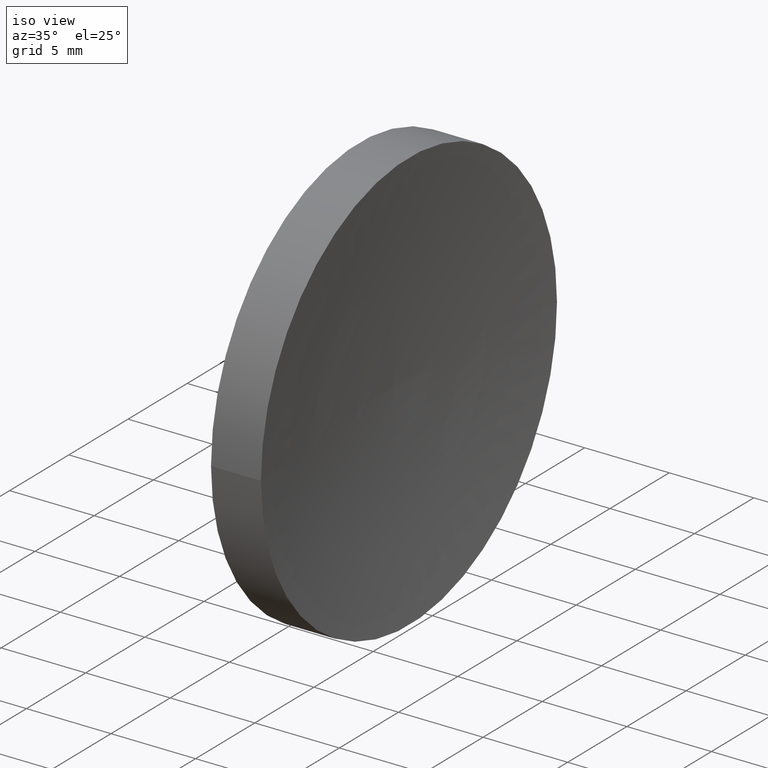
[diagram: clean part render]
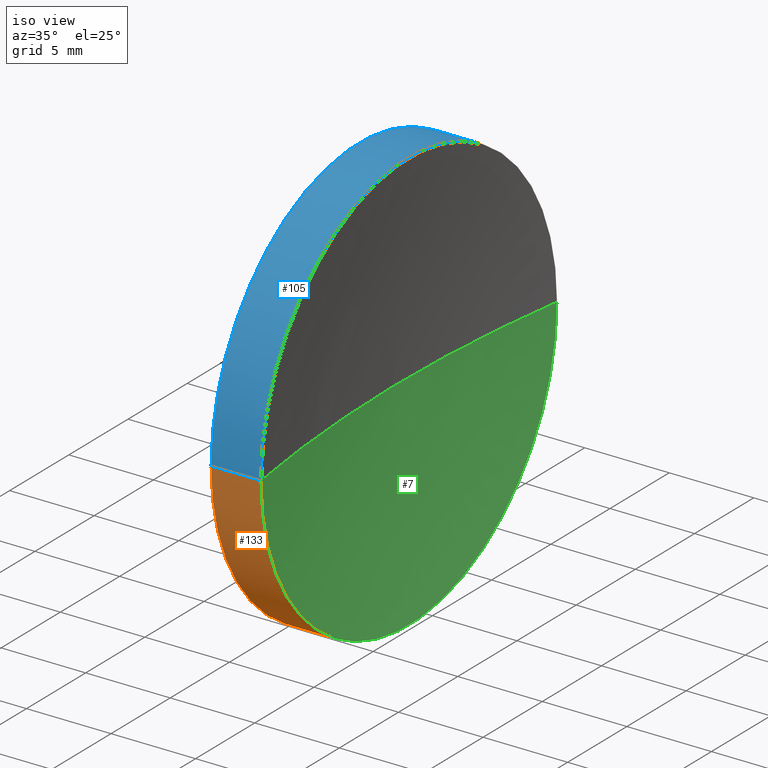
[diagram: same view with three faces highlighted in distinct colors, each labeled with its STEP entity id]
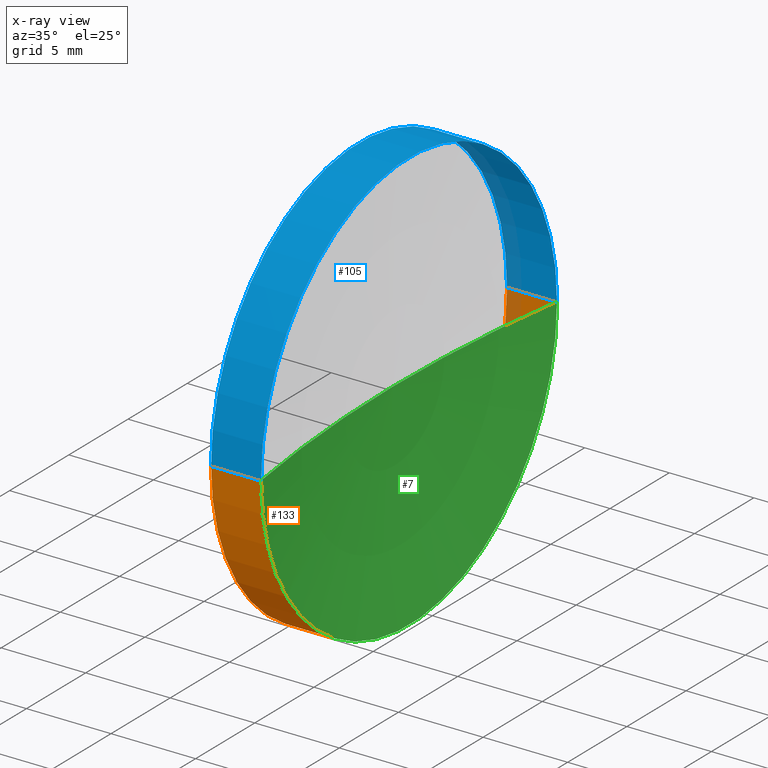
[diagram: x-ray of the same camera — body ghosted, the three highlighted faces saturated]
A machine part, iso view with three faces highlighted in distinct colors.
The next image is the same camera in x-ray (body ghosted, the three faces saturated) — at least one of them is partly hidden behind the body in this view.
Their STEP definitions:

[orange] entity #133 — the highlighted cylindrical surface (partial cylindrical patch) has radius 12.5 mm, axis along (-1, 0, -0).
#3 = EDGE_CURVE ( 'NONE', #114, #83, #98, .T. ) ;
#4 = CARTESIAN_POINT ( 'NONE',  ( 60.31197721033621700, 45.07872591329306300, 1.530808498934187800E-015 ) ) ;
#8 = LINE ( 'NONE', #129, #125 ) ;
#11 = EDGE_CURVE ( 'NONE', #114, #60, #52, .T. ) ;
#18 = CARTESIAN_POINT ( 'NONE',  ( 57.35819015802111000, 32.57872591329309800, 0.0000000000000000000 ) ) ;
#19 = ORIENTED_EDGE ( 'NONE', *, *, #3, .F. ) ;
#23 = AXIS2_PLACEMENT_3D ( 'NONE', #82, #68, #95 ) ;
#33 = CYLINDRICAL_SURFACE ( 'NONE', #23, 12.50000000000000000 ) ;
#34 = FACE_OUTER_BOUND ( 'NONE', #135, .T. ) ;
#44 = ORIENTED_EDGE ( 'NONE', *, *, #73, .F. ) ;
#50 = ORIENTED_EDGE ( 'NONE', *, *, #94, .T. ) ;
#52 = CIRCLE ( 'NONE', #113, 12.50000000000000000 ) ;
#55 = DIRECTION ( 'NONE',  ( -1.000000000000000000, 7.636108817321419600E-016, -0.0000000000000000000 ) ) ;
#58 = VERTEX_POINT ( 'NONE', #145 ) ;
#60 = VERTEX_POINT ( 'NONE', #140 ) ;
#62 = DIRECTION ( 'NONE',  ( -1.000000000000000000, 7.636108817321419600E-016, -0.0000000000000000000 ) ) ;
#64 = CARTESIAN_POINT ( 'NONE',  ( 55.00739462442118800, 45.07872591329309100, 1.530808498934191500E-015 ) ) ;
#65 = DIRECTION ( 'NONE',  ( -5.551115123125782700E-016, -1.000000000000000000, 0.0000000000000000000 ) ) ;
#68 = DIRECTION ( 'NONE',  ( -1.000000000000000000, 7.636108817321419600E-016, -0.0000000000000000000 ) ) ;
#73 = EDGE_CURVE ( 'NONE', #83, #58, #110, .T. ) ;
#82 = CARTESIAN_POINT ( 'NONE',  ( 55.00739462442118100, 32.57872591329309800, 0.0000000000000000000 ) ) ;
#83 = VERTEX_POINT ( 'NONE', #128 ) ;
#85 = DIRECTION ( 'NONE',  ( -1.000000000000000000, 7.636108817321419600E-016, -0.0000000000000000000 ) ) ;
#87 = VECTOR ( 'NONE', #55, 1000.000000000000000 ) ;
#89 = CARTESIAN_POINT ( 'NONE',  ( 60.31197721033621700, 32.57872591329309100, 0.0000000000000000000 ) ) ;
#94 = EDGE_CURVE ( 'NONE', #60, #58, #8, .T. ) ;
#95 = DIRECTION ( 'NONE',  ( -5.551115123125782700E-016, -1.000000000000000000, 0.0000000000000000000 ) ) ;
#98 = LINE ( 'NONE', #64, #87 ) ;
#110 = CIRCLE ( 'NONE', #111, 12.49999999999999600 ) ;
#111 = AXIS2_PLACEMENT_3D ( 'NONE', #18, #85, #158 ) ;
#113 = AXIS2_PLACEMENT_3D ( 'NONE', #89, #62, #65 ) ;
#114 = VERTEX_POINT ( 'NONE', #4 ) ;
#125 = VECTOR ( 'NONE', #159, 1000.000000000000000 ) ;
#128 = CARTESIAN_POINT ( 'NONE',  ( 57.35819015802111700, 45.07872591329309100, 1.530808498934191900E-015 ) ) ;
#129 = CARTESIAN_POINT ( 'NONE',  ( 55.00739462442117400, 20.07872591329309500, 0.0000000000000000000 ) ) ;
#133 = ADVANCED_FACE ( 'NONE', ( #34 ), #33, .T. ) ;
#135 = EDGE_LOOP ( 'NONE', ( #19, #146, #50, #44 ) ) ;
#140 = CARTESIAN_POINT ( 'NONE',  ( 60.31197721033620200, 20.07872591329312000, 0.0000000000000000000 ) ) ;
#145 = CARTESIAN_POINT ( 'NONE',  ( 57.35819015802110200, 20.07872591329309800, 0.0000000000000000000 ) ) ;
#146 = ORIENTED_EDGE ( 'NONE', *, *, #11, .T. ) ;
#158 = DIRECTION ( 'NONE',  ( -5.551115123125784700E-016, -1.000000000000000000, 0.0000000000000000000 ) ) ;
#159 = DIRECTION ( 'NONE',  ( -1.000000000000000000, 7.636108817321419600E-016, -0.0000000000000000000 ) ) ;

[blue] entity #105 — the highlighted cylindrical surface (partial cylindrical patch) has radius 12.5 mm, axis along (-1, 0, -0).
#1 = CARTESIAN_POINT ( 'NONE',  ( 57.35819015802111000, 32.57872591329309800, 0.0000000000000000000 ) ) ;
#3 = EDGE_CURVE ( 'NONE', #114, #83, #98, .T. ) ;
#4 = CARTESIAN_POINT ( 'NONE',  ( 60.31197721033621700, 45.07872591329306300, 1.530808498934187800E-015 ) ) ;
#6 = DIRECTION ( 'NONE',  ( -5.551115123125784700E-016, -1.000000000000000000, 0.0000000000000000000 ) ) ;
#8 = LINE ( 'NONE', #129, #125 ) ;
#25 = CYLINDRICAL_SURFACE ( 'NONE', #151, 12.50000000000000000 ) ;
#27 = FACE_OUTER_BOUND ( 'NONE', #48, .T. ) ;
#30 = DIRECTION ( 'NONE',  ( -1.000000000000000000, 7.636108817321419600E-016, -0.0000000000000000000 ) ) ;
#40 = DIRECTION ( 'NONE',  ( -1.000000000000000000, 7.636108817321419600E-016, -0.0000000000000000000 ) ) ;
#48 = EDGE_LOOP ( 'NONE', ( #107, #122, #152, #76 ) ) ;
#55 = DIRECTION ( 'NONE',  ( -1.000000000000000000, 7.636108817321419600E-016, -0.0000000000000000000 ) ) ;
#58 = VERTEX_POINT ( 'NONE', #145 ) ;
#59 = DIRECTION ( 'NONE',  ( -5.551115123125782700E-016, -1.000000000000000000, 0.0000000000000000000 ) ) ;
#60 = VERTEX_POINT ( 'NONE', #140 ) ;
#64 = CARTESIAN_POINT ( 'NONE',  ( 55.00739462442118800, 45.07872591329309100, 1.530808498934191500E-015 ) ) ;
#66 = DIRECTION ( 'NONE',  ( -1.000000000000000000, 7.636108817321419600E-016, -0.0000000000000000000 ) ) ;
#76 = ORIENTED_EDGE ( 'NONE', *, *, #94, .F. ) ;
#83 = VERTEX_POINT ( 'NONE', #128 ) ;
#84 = CARTESIAN_POINT ( 'NONE',  ( 60.31197721033621700, 32.57872591329309100, 0.0000000000000000000 ) ) ;
#87 = VECTOR ( 'NONE', #55, 1000.000000000000000 ) ;
#94 = EDGE_CURVE ( 'NONE', #60, #58, #8, .T. ) ;
#98 = LINE ( 'NONE', #64, #87 ) ;
#105 = ADVANCED_FACE ( 'NONE', ( #27 ), #25, .T. ) ;
#107 = ORIENTED_EDGE ( 'NONE', *, *, #144, .T. ) ;
#114 = VERTEX_POINT ( 'NONE', #4 ) ;
#122 = ORIENTED_EDGE ( 'NONE', *, *, #3, .T. ) ;
#123 = AXIS2_PLACEMENT_3D ( 'NONE', #84, #66, #160 ) ;
#125 = VECTOR ( 'NONE', #159, 1000.000000000000000 ) ;
#128 = CARTESIAN_POINT ( 'NONE',  ( 57.35819015802111700, 45.07872591329309100, 1.530808498934191900E-015 ) ) ;
#129 = CARTESIAN_POINT ( 'NONE',  ( 55.00739462442117400, 20.07872591329309500, 0.0000000000000000000 ) ) ;
#134 = CARTESIAN_POINT ( 'NONE',  ( 55.00739462442118100, 32.57872591329309800, 0.0000000000000000000 ) ) ;
#140 = CARTESIAN_POINT ( 'NONE',  ( 60.31197721033620200, 20.07872591329312000, 0.0000000000000000000 ) ) ;
#144 = EDGE_CURVE ( 'NONE', #60, #114, #157, .T. ) ;
#145 = CARTESIAN_POINT ( 'NONE',  ( 57.35819015802110200, 20.07872591329309800, 0.0000000000000000000 ) ) ;
#151 = AXIS2_PLACEMENT_3D ( 'NONE', #134, #30, #59 ) ;
#152 = ORIENTED_EDGE ( 'NONE', *, *, #155, .F. ) ;
#155 = EDGE_CURVE ( 'NONE', #58, #83, #161, .T. ) ;
#157 = CIRCLE ( 'NONE', #123, 12.50000000000000000 ) ;
#159 = DIRECTION ( 'NONE',  ( -1.000000000000000000, 7.636108817321419600E-016, -0.0000000000000000000 ) ) ;
#160 = DIRECTION ( 'NONE',  ( -5.551115123125782700E-016, -1.000000000000000000, 0.0000000000000000000 ) ) ;
#161 = CIRCLE ( 'NONE', #162, 12.49999999999999600 ) ;
#162 = AXIS2_PLACEMENT_3D ( 'NONE', #1, #40, #6 ) ;

[green] entity #7 — the highlighted toroidal blend (fillet) surface has major radius 0.0178 mm and minor (blend) radius 82.62 mm.
#2 = CARTESIAN_POINT ( 'NONE',  ( 141.9781882486672100, 32.56096354764692800, -2.175262423378643000E-018 ) ) ;
#4 = CARTESIAN_POINT ( 'NONE',  ( 60.31197721033621700, 45.07872591329306300, 1.530808498934187800E-015 ) ) ;
#5 = ORIENTED_EDGE ( 'NONE', *, *, #11, .F. ) ;
#7 = ADVANCED_FACE ( 'NONE', ( #38 ), #150, .F. ) ;
#11 = EDGE_CURVE ( 'NONE', #114, #60, #52, .T. ) ;
#14 = CARTESIAN_POINT ( 'NONE',  ( 141.9781882486672100, 32.57872591329302700, 0.0000000000000000000 ) ) ;
#15 = DIRECTION ( 'NONE',  ( 0.0000000000000000000, -0.0000000000000000000, -1.000000000000000000 ) ) ;
#17 = DIRECTION ( 'NONE',  ( 0.0000000000000000000, -1.000000000000000000, -1.224646799147353200E-016 ) ) ;
#38 = FACE_OUTER_BOUND ( 'NONE', #153, .T. ) ;
#52 = CIRCLE ( 'NONE', #113, 12.50000000000000000 ) ;
#60 = VERTEX_POINT ( 'NONE', #140 ) ;
#62 = DIRECTION ( 'NONE',  ( -1.000000000000000000, 7.636108817321419600E-016, -0.0000000000000000000 ) ) ;
#63 = ORIENTED_EDGE ( 'NONE', *, *, #67, .F. ) ;
#65 = DIRECTION ( 'NONE',  ( -5.551115123125782700E-016, -1.000000000000000000, 0.0000000000000000000 ) ) ;
#67 = EDGE_CURVE ( 'NONE', #60, #100, #148, .T. ) ;
#69 = DIRECTION ( 'NONE',  ( -1.000000000000000000, 0.0000000000000000000, 0.0000000000000000000 ) ) ;
#75 = ORIENTED_EDGE ( 'NONE', *, *, #99, .T. ) ;
#89 = CARTESIAN_POINT ( 'NONE',  ( 60.31197721033621700, 32.57872591329309100, 0.0000000000000000000 ) ) ;
#90 = CARTESIAN_POINT ( 'NONE',  ( 141.9781882486672100, 32.59648827893912700, 0.0000000000000000000 ) ) ;
#99 = EDGE_CURVE ( 'NONE', #114, #100, #137, .T. ) ;
#100 = VERTEX_POINT ( 'NONE', #120 ) ;
#101 = DIRECTION ( 'NONE',  ( -7.636108817321419600E-016, -1.000000000000000000, 0.0000000000000000000 ) ) ;
#103 = AXIS2_PLACEMENT_3D ( 'NONE', #14, #116, #101 ) ;
#113 = AXIS2_PLACEMENT_3D ( 'NONE', #89, #62, #65 ) ;
#114 = VERTEX_POINT ( 'NONE', #4 ) ;
#116 = DIRECTION ( 'NONE',  ( -1.000000000000000000, 7.636108817321419600E-016, -0.0000000000000000000 ) ) ;
#119 = AXIS2_PLACEMENT_3D ( 'NONE', #2, #149, #17 ) ;
#120 = CARTESIAN_POINT ( 'NONE',  ( 59.35819015802110200, 32.57872591329309100, 0.0000000000000000000 ) ) ;
#132 = AXIS2_PLACEMENT_3D ( 'NONE', #90, #15, #69 ) ;
#137 = CIRCLE ( 'NONE', #119, 82.62000000000000500 ) ;
#140 = CARTESIAN_POINT ( 'NONE',  ( 60.31197721033620200, 20.07872591329312000, 0.0000000000000000000 ) ) ;
#148 = CIRCLE ( 'NONE', #132, 82.62000000000000500 ) ;
#149 = DIRECTION ( 'NONE',  ( -9.351536221073556900E-032, -1.224646799147353200E-016, 1.000000000000000000 ) ) ;
#150 = TOROIDAL_SURFACE ( 'NONE', #103, -0.01776236564610420700, 82.62000000000000500 ) ;
#153 = EDGE_LOOP ( 'NONE', ( #5, #75, #63 ) ) ;